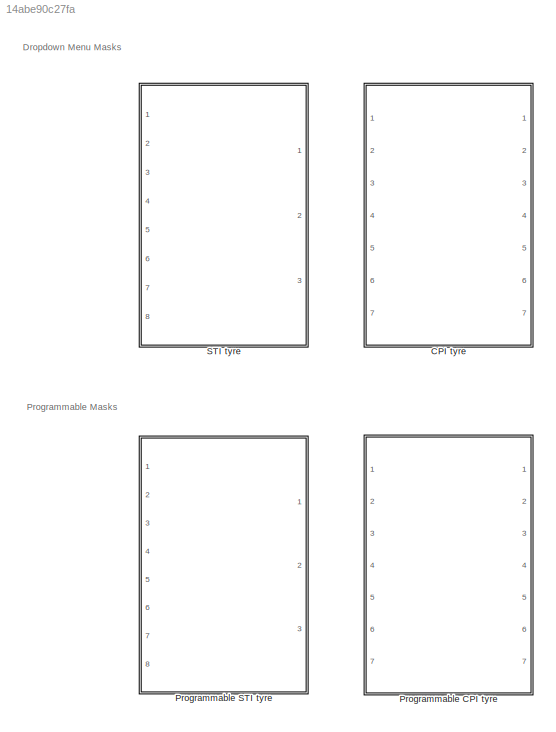
MODEL slx_14abe90c27fa
KIND library
CONFIG AbsTol = auto
CONFIG EnableMultiTasking = off
CONFIG FixedStep = auto
CONFIG MaxStep = auto
CONFIG MinStep = auto
CONFIG RelTol = 1e-3
CONFIG SampleTimeConstraint = Unconstrained
CONFIG Solver = ode45
CONFIG SolverName = ode45
CONFIG StartTime = 0.0
CONFIG StopTime = 10.0
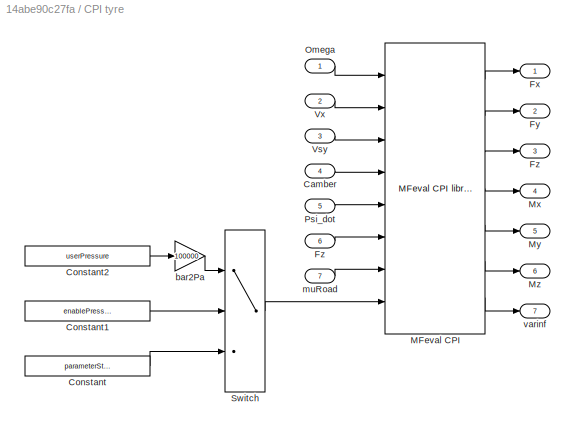
BLOCK [SubSystem] CPI tyre
  Description = Magic Formula 6.1.2 tyre model including relaxation length and transient calculations
  Ports = [7, 7]
  RequestExecContextInheritance = off
  TreatAsAtomicUnit = on
  Variant = off
BLOCK [Inport] CPI tyre/Camber
  IconDisplay = Port number
  Port = 4
BLOCK [Constant] CPI tyre/Constant
  Value = parameterStruct.INFLPRES
BLOCK [Constant] CPI tyre/Constant1
  Value = enablePressure
BLOCK [Constant] CPI tyre/Constant2
  Value = userPressure
BLOCK [Outport] CPI tyre/Fx
  IconDisplay = Port number
BLOCK [Outport] CPI tyre/Fy
  IconDisplay = Port number
  Port = 2
BLOCK [Inport] CPI tyre/Fz
  IconDisplay = Port number
  Port = 6
BLOCK [Outport] CPI tyre/Fz 
  IconDisplay = Port number
  Port = 3
BLOCK [Reference] CPI tyre/MFeval CPI  REF=mfeval_CPI_LIB/MFeval CPI library
  Ports = [8, 7]
  SourceBlock = mfeval_CPI_LIB/MFeval CPI library
  SourceType = SubSystem
BLOCK [Outport] CPI tyre/Mx
  IconDisplay = Port number
  Port = 4
BLOCK [Outport] CPI tyre/My
  IconDisplay = Port number
  Port = 5
BLOCK [Outport] CPI tyre/Mz
  IconDisplay = Port number
  Port = 6
BLOCK [Inport] CPI tyre/Omega
  IconDisplay = Port number
BLOCK [Inport] CPI tyre/Psi_dot
  IconDisplay = Port number
  Port = 5
BLOCK [Switch] CPI tyre/Switch
  Criteria = u2 > Threshold
  InputSameDT = off
  SaturateOnIntegerOverflow = off
BLOCK [Inport] CPI tyre/Vsy
  IconDisplay = Port number
  Port = 3
BLOCK [Inport] CPI tyre/Vx
  IconDisplay = Port number
  Port = 2
BLOCK [Gain] CPI tyre/bar2Pa
  Gain = 100000
  OutDataTypeStr = Inherit: Inherit via internal rule
  ParamDataTypeStr = Inherit: Inherit via internal rule
  SaturateOnIntegerOverflow = off
BLOCK [Inport] CPI tyre/muRoad
  IconDisplay = Port number
  Port = 7
BLOCK [Outport] CPI tyre/varinf
  IconDisplay = Port number
  Port = 7
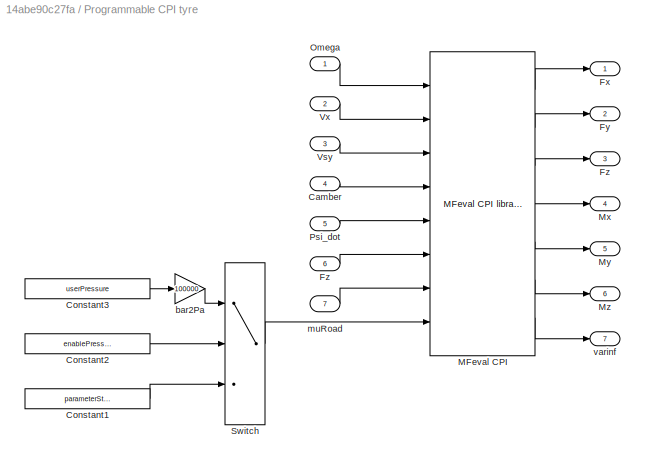
BLOCK [SubSystem] Programmable CPI tyre
  Description = Magic Formula 6.1.2 tyre model including relaxation length and transient calculations
  Ports = [7, 7]
  RequestExecContextInheritance = off
  TreatAsAtomicUnit = on
  Variant = off
BLOCK [Inport] Programmable CPI tyre/Camber
  IconDisplay = Port number
  Port = 4
BLOCK [Constant] Programmable CPI tyre/Constant1
  Value = parameterStruct.INFLPRES
BLOCK [Constant] Programmable CPI tyre/Constant2
  Value = enablePressure
BLOCK [Constant] Programmable CPI tyre/Constant3
  Value = userPressure
BLOCK [Outport] Programmable CPI tyre/Fx
  IconDisplay = Port number
BLOCK [Outport] Programmable CPI tyre/Fy
  IconDisplay = Port number
  Port = 2
BLOCK [Inport] Programmable CPI tyre/Fz
  IconDisplay = Port number
  Port = 6
BLOCK [Outport] Programmable CPI tyre/Fz 
  IconDisplay = Port number
  Port = 3
BLOCK [Reference] Programmable CPI tyre/MFeval CPI  REF=mfeval_CPI_LIB/MFeval CPI library
  Ports = [8, 7]
  SourceBlock = mfeval_CPI_LIB/MFeval CPI library
  SourceType = SubSystem
BLOCK [Outport] Programmable CPI tyre/Mx
  IconDisplay = Port number
  Port = 4
BLOCK [Outport] Programmable CPI tyre/My
  IconDisplay = Port number
  Port = 5
BLOCK [Outport] Programmable CPI tyre/Mz
  IconDisplay = Port number
  Port = 6
BLOCK [Inport] Programmable CPI tyre/Omega
  IconDisplay = Port number
BLOCK [Inport] Programmable CPI tyre/Psi_dot
  IconDisplay = Port number
  Port = 5
BLOCK [Switch] Programmable CPI tyre/Switch
  Criteria = u2 > Threshold
  InputSameDT = off
  SaturateOnIntegerOverflow = off
BLOCK [Inport] Programmable CPI tyre/Vsy
  IconDisplay = Port number
  Port = 3
BLOCK [Inport] Programmable CPI tyre/Vx
  IconDisplay = Port number
  Port = 2
BLOCK [Gain] Programmable CPI tyre/bar2Pa
  Gain = 100000
  OutDataTypeStr = Inherit: Inherit via internal rule
  ParamDataTypeStr = Inherit: Inherit via internal rule
  SaturateOnIntegerOverflow = off
BLOCK [Inport] Programmable CPI tyre/muRoad
  IconDisplay = Port number
  Port = 7
BLOCK [Outport] Programmable CPI tyre/varinf
  IconDisplay = Port number
  Port = 7
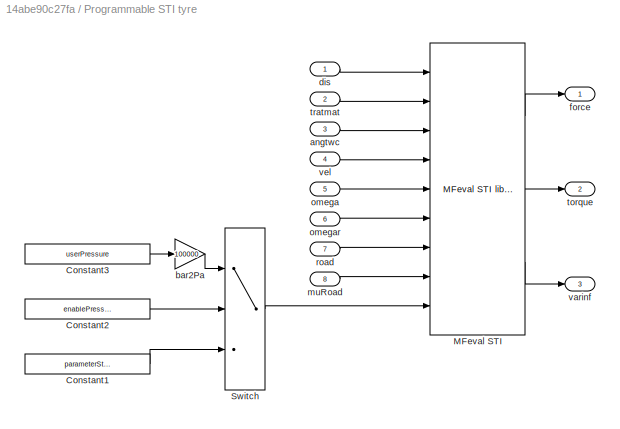
BLOCK [SubSystem] Programmable STI tyre 
  Ports = [8, 3]
  RequestExecContextInheritance = off
  Variant = off
BLOCK [Constant] Programmable STI tyre /Constant1
  Value = parameterStruct.INFLPRES
BLOCK [Constant] Programmable STI tyre /Constant2
  Value = enablePressure
BLOCK [Constant] Programmable STI tyre /Constant3
  Value = userPressure
BLOCK [Reference] Programmable STI tyre /MFeval STI  REF=mfeval_STI_LIB/MFeval STI library
  Ports = [9, 3]
  SourceBlock = mfeval_STI_LIB/MFeval STI library
  SourceType = SubSystem
BLOCK [Switch] Programmable STI tyre /Switch
  Criteria = u2 > Threshold
  InputSameDT = off
  SaturateOnIntegerOverflow = off
BLOCK [Inport] Programmable STI tyre /angtwc
  IconDisplay = Port number
  Port = 3
BLOCK [Gain] Programmable STI tyre /bar2Pa
  Gain = 100000
  OutDataTypeStr = Inherit: Inherit via internal rule
  ParamDataTypeStr = Inherit: Inherit via internal rule
  SaturateOnIntegerOverflow = off
BLOCK [Inport] Programmable STI tyre /dis
  IconDisplay = Port number
BLOCK [Outport] Programmable STI tyre /force
  IconDisplay = Port number
BLOCK [Inport] Programmable STI tyre /muRoad
  IconDisplay = Port number
  Port = 8
BLOCK [Inport] Programmable STI tyre /omega
  IconDisplay = Port number
  Port = 5
BLOCK [Inport] Programmable STI tyre /omegar
  IconDisplay = Port number
  Port = 6
BLOCK [Inport] Programmable STI tyre /road
  IconDisplay = Port number
  Port = 7
BLOCK [Outport] Programmable STI tyre /torque
  IconDisplay = Port number
  Port = 2
BLOCK [Inport] Programmable STI tyre /tratmat
  IconDisplay = Port number
  Port = 2
BLOCK [Outport] Programmable STI tyre /varinf
  IconDisplay = Port number
  Port = 3
BLOCK [Inport] Programmable STI tyre /vel
  IconDisplay = Port number
  Port = 4
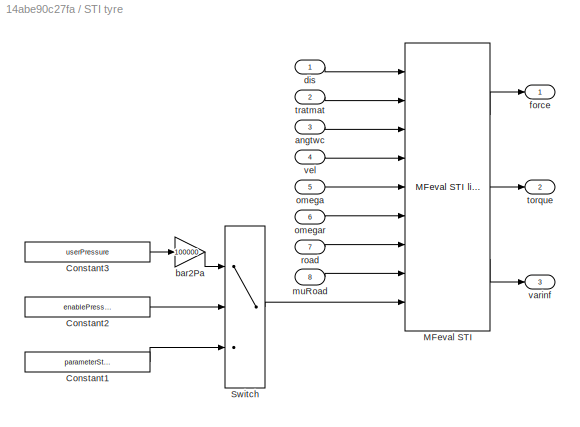
BLOCK [SubSystem] STI tyre
  Description = Magic Formula 6.1.2 tyre model including relaxation length and transient calculations
  Ports = [8, 3]
  RequestExecContextInheritance = off
  TreatAsAtomicUnit = on
  Variant = off
BLOCK [Constant] STI tyre/Constant1
  Value = parameterStruct.INFLPRES
BLOCK [Constant] STI tyre/Constant2
  Value = enablePressure
BLOCK [Constant] STI tyre/Constant3
  Value = userPressure
BLOCK [Reference] STI tyre/MFeval STI  REF=mfeval_STI_LIB/MFeval STI library
  Ports = [9, 3]
  SourceBlock = mfeval_STI_LIB/MFeval STI library
  SourceType = SubSystem
BLOCK [Switch] STI tyre/Switch
  Criteria = u2 > Threshold
  InputSameDT = off
  SaturateOnIntegerOverflow = off
BLOCK [Inport] STI tyre/angtwc
  IconDisplay = Port number
  Port = 3
BLOCK [Gain] STI tyre/bar2Pa
  Gain = 100000
  OutDataTypeStr = Inherit: Inherit via internal rule
  ParamDataTypeStr = Inherit: Inherit via internal rule
  SaturateOnIntegerOverflow = off
BLOCK [Inport] STI tyre/dis
  IconDisplay = Port number
BLOCK [Outport] STI tyre/force
  IconDisplay = Port number
BLOCK [Inport] STI tyre/muRoad
  IconDisplay = Port number
  Port = 8
BLOCK [Inport] STI tyre/omega
  IconDisplay = Port number
  Port = 5
BLOCK [Inport] STI tyre/omegar
  IconDisplay = Port number
  Port = 6
BLOCK [Inport] STI tyre/road
  IconDisplay = Port number
  Port = 7
BLOCK [Outport] STI tyre/torque
  IconDisplay = Port number
  Port = 2
BLOCK [Inport] STI tyre/tratmat
  IconDisplay = Port number
  Port = 2
BLOCK [Outport] STI tyre/varinf
  IconDisplay = Port number
  Port = 3
BLOCK [Inport] STI tyre/vel
  IconDisplay = Port number
  Port = 4
ANNOTATION (root): Dropdown Menu Masks
ANNOTATION (root): Programmable Masks
LINE CPI tyre/Camber:1 -> CPI tyre/MFeval CPI:4
LINE CPI tyre/Constant1:1 -> CPI tyre/Switch:2
LINE CPI tyre/Constant2:1 -> CPI tyre/bar2Pa:1
LINE CPI tyre/Constant:1 -> CPI tyre/Switch:3
LINE CPI tyre/Fz:1 -> CPI tyre/MFeval CPI:6
LINE CPI tyre/MFeval CPI:1 -> CPI tyre/Fx:1
LINE CPI tyre/MFeval CPI:2 -> CPI tyre/Fy:1
LINE CPI tyre/MFeval CPI:3 -> CPI tyre/Fz :1
LINE CPI tyre/MFeval CPI:4 -> CPI tyre/Mx:1
LINE CPI tyre/MFeval CPI:5 -> CPI tyre/My:1
LINE CPI tyre/MFeval CPI:6 -> CPI tyre/Mz:1
LINE CPI tyre/MFeval CPI:7 -> CPI tyre/varinf:1
LINE CPI tyre/Omega:1 -> CPI tyre/MFeval CPI:1
LINE CPI tyre/Psi_dot:1 -> CPI tyre/MFeval CPI:5
LINE CPI tyre/Switch:1 -> CPI tyre/MFeval CPI:8
LINE CPI tyre/Vsy:1 -> CPI tyre/MFeval CPI:3
LINE CPI tyre/Vx:1 -> CPI tyre/MFeval CPI:2
LINE CPI tyre/bar2Pa:1 -> CPI tyre/Switch:1
LINE CPI tyre/muRoad:1 -> CPI tyre/MFeval CPI:7
LINE Programmable CPI tyre/Camber:1 -> Programmable CPI tyre/MFeval CPI:4
LINE Programmable CPI tyre/Constant1:1 -> Programmable CPI tyre/Switch:3
LINE Programmable CPI tyre/Constant2:1 -> Programmable CPI tyre/Switch:2
LINE Programmable CPI tyre/Constant3:1 -> Programmable CPI tyre/bar2Pa:1
LINE Programmable CPI tyre/Fz:1 -> Programmable CPI tyre/MFeval CPI:6
LINE Programmable CPI tyre/MFeval CPI:1 -> Programmable CPI tyre/Fx:1
LINE Programmable CPI tyre/MFeval CPI:2 -> Programmable CPI tyre/Fy:1
LINE Programmable CPI tyre/MFeval CPI:3 -> Programmable CPI tyre/Fz :1
LINE Programmable CPI tyre/MFeval CPI:4 -> Programmable CPI tyre/Mx:1
LINE Programmable CPI tyre/MFeval CPI:5 -> Programmable CPI tyre/My:1
LINE Programmable CPI tyre/MFeval CPI:6 -> Programmable CPI tyre/Mz:1
LINE Programmable CPI tyre/MFeval CPI:7 -> Programmable CPI tyre/varinf:1
LINE Programmable CPI tyre/Omega:1 -> Programmable CPI tyre/MFeval CPI:1
LINE Programmable CPI tyre/Psi_dot:1 -> Programmable CPI tyre/MFeval CPI:5
LINE Programmable CPI tyre/Switch:1 -> Programmable CPI tyre/MFeval CPI:8
LINE Programmable CPI tyre/Vsy:1 -> Programmable CPI tyre/MFeval CPI:3
LINE Programmable CPI tyre/Vx:1 -> Programmable CPI tyre/MFeval CPI:2
LINE Programmable CPI tyre/bar2Pa:1 -> Programmable CPI tyre/Switch:1
LINE Programmable CPI tyre/muRoad:1 -> Programmable CPI tyre/MFeval CPI:7
LINE Programmable STI tyre /Constant1:1 -> Programmable STI tyre /Switch:3
LINE Programmable STI tyre /Constant2:1 -> Programmable STI tyre /Switch:2
LINE Programmable STI tyre /Constant3:1 -> Programmable STI tyre /bar2Pa:1
LINE Programmable STI tyre /MFeval STI:1 -> Programmable STI tyre /force:1
LINE Programmable STI tyre /MFeval STI:2 -> Programmable STI tyre /torque:1
LINE Programmable STI tyre /MFeval STI:3 -> Programmable STI tyre /varinf:1
LINE Programmable STI tyre /Switch:1 -> Programmable STI tyre /MFeval STI:9
LINE Programmable STI tyre /angtwc:1 -> Programmable STI tyre /MFeval STI:3
LINE Programmable STI tyre /bar2Pa:1 -> Programmable STI tyre /Switch:1
LINE Programmable STI tyre /dis:1 -> Programmable STI tyre /MFeval STI:1
LINE Programmable STI tyre /muRoad:1 -> Programmable STI tyre /MFeval STI:8
LINE Programmable STI tyre /omega:1 -> Programmable STI tyre /MFeval STI:5
LINE Programmable STI tyre /omegar:1 -> Programmable STI tyre /MFeval STI:6
LINE Programmable STI tyre /road:1 -> Programmable STI tyre /MFeval STI:7
LINE Programmable STI tyre /tratmat:1 -> Programmable STI tyre /MFeval STI:2
LINE Programmable STI tyre /vel:1 -> Programmable STI tyre /MFeval STI:4
LINE STI tyre/Constant1:1 -> STI tyre/Switch:3
LINE STI tyre/Constant2:1 -> STI tyre/Switch:2
LINE STI tyre/Constant3:1 -> STI tyre/bar2Pa:1
LINE STI tyre/MFeval STI:1 -> STI tyre/force:1
LINE STI tyre/MFeval STI:2 -> STI tyre/torque:1
LINE STI tyre/MFeval STI:3 -> STI tyre/varinf:1
LINE STI tyre/Switch:1 -> STI tyre/MFeval STI:9
LINE STI tyre/angtwc:1 -> STI tyre/MFeval STI:3
LINE STI tyre/bar2Pa:1 -> STI tyre/Switch:1
LINE STI tyre/dis:1 -> STI tyre/MFeval STI:1
LINE STI tyre/muRoad:1 -> STI tyre/MFeval STI:8
LINE STI tyre/omega:1 -> STI tyre/MFeval STI:5
LINE STI tyre/omegar:1 -> STI tyre/MFeval STI:6
LINE STI tyre/road:1 -> STI tyre/MFeval STI:7
LINE STI tyre/tratmat:1 -> STI tyre/MFeval STI:2
LINE STI tyre/vel:1 -> STI tyre/MFeval STI:4
